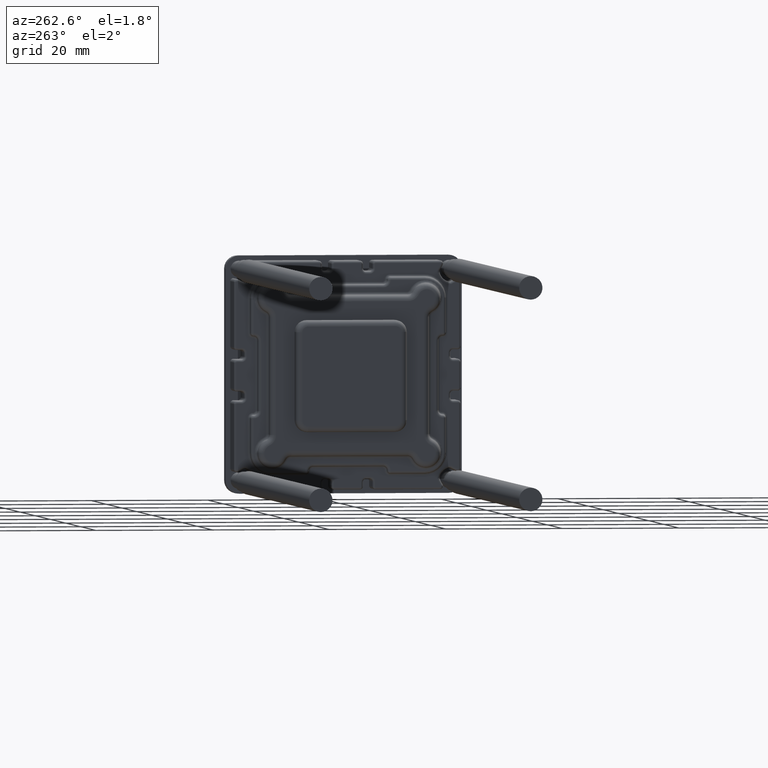
[diagram: clean part render]
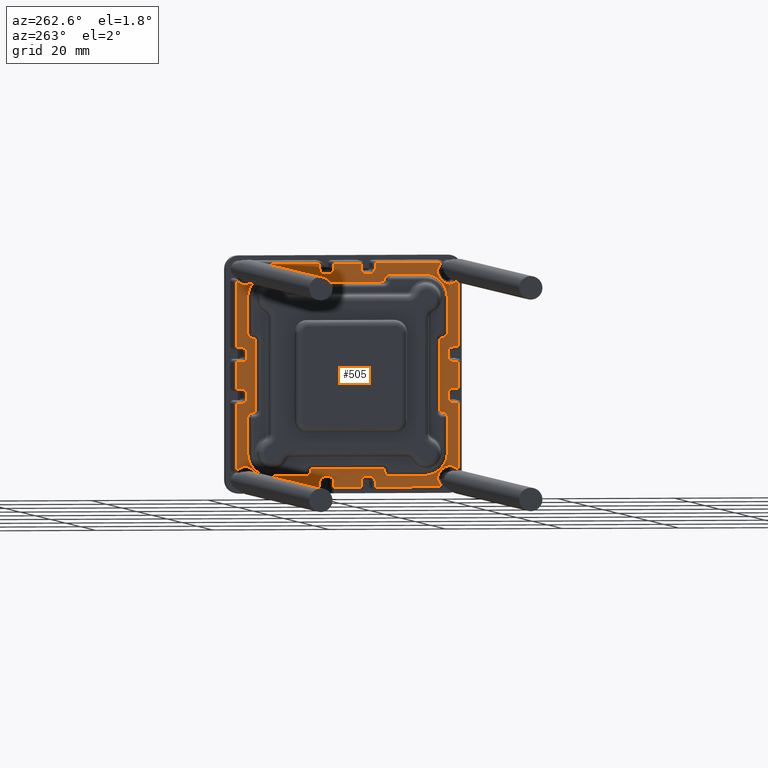
[diagram: same view with one face highlighted and labeled with its STEP entity id]
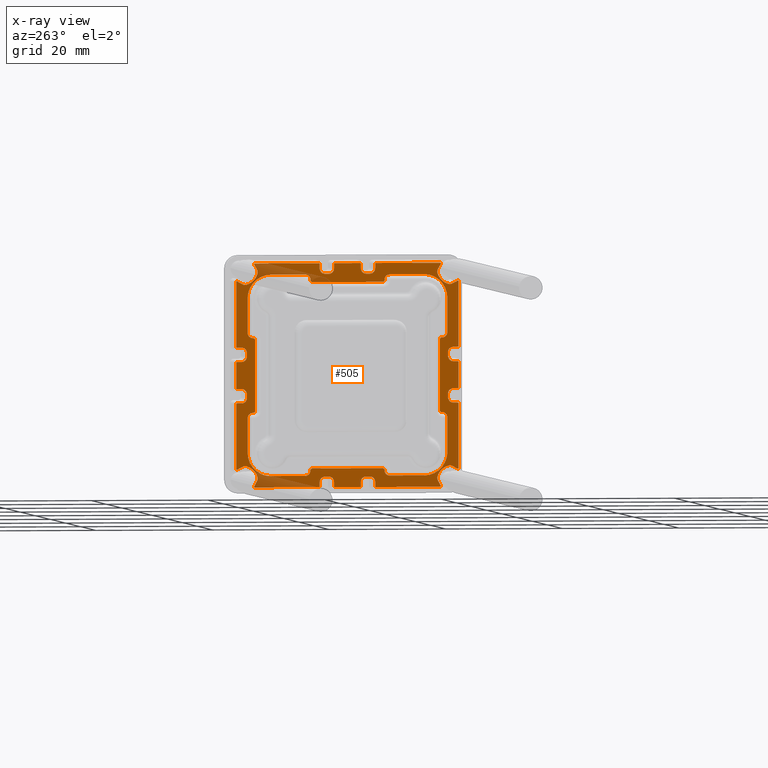
[diagram: x-ray of the same camera — body ghosted, the highlighted face saturated]
A machine part, auxiliary view. The second image highlights one B-rep face of the part: STEP entity #505.
The next image is the same camera in x-ray: the body ghosted, the highlighted face saturated — about 10% of this face is hidden behind the body in this view.
In plain terms, the highlighted planar face has unit normal (-1, 0, 0).
Its self-contained STEP definition (entity closure, byte-faithful):
#505=ADVANCED_FACE('',(#1365,#935),#3859,.T.);
#935=FACE_OUTER_BOUND('',#1378,.F.);
#1365=FACE_BOUND('',#1377,.F.);
#1377=EDGE_LOOP('',(#1819,#1820,#1821,#1822,#1823,#1824,#1825,#1826,#1827,
#1828,#1829,#1830,#1831,#1832,#1833,#1834,#1835,#1836,#1837,#1838,#1839,
#1840,#1841,#1842,#1843,#1844,#1845,#1846,#1847,#1848,#1849,#1850,#1851,
#1852,#1853,#1854,#1855,#1856,#1857,#1858,#1859,#1860,#1861,#1862));
#1378=EDGE_LOOP('',(#1863,#1864,#1865,#1866,#1867,#1868,#1869,#1870,#1871,
#1872,#1873,#1874,#1875,#1876,#1877,#1878,#1879,#1880,#1881,#1882,#1883,
#1884,#1885,#1886,#1887,#1888,#1889,#1890,#1891,#1892,#1893,#1894,#1895,
#1896,#1897,#1898,#1899,#1900,#1901,#1902,#1903,#1904,#1905,#1906,#1907,
#1908,#1909,#1910,#1911,#1912,#1913,#1914,#1915,#1916,#1917,#1918,#1919,
#1920,#1921,#1922,#1923,#1924,#1925,#1926,#1927,#1928,#1929,#1930,#1931,
#1932,#1933,#1934,#1935,#1936,#1937,#1938,#1939,#1940,#1941,#1942,#1943,
#1944,#1945,#1946,#1947,#1948,#1949,#1950,#1951,#1952,#1953,#1954,#1955,
#1956,#1957,#1958));
#1819=ORIENTED_EDGE('',*,*,#5737,.T.);
#1820=ORIENTED_EDGE('',*,*,#5736,.T.);
#1821=ORIENTED_EDGE('',*,*,#5735,.T.);
#1822=ORIENTED_EDGE('',*,*,#5734,.T.);
#1823=ORIENTED_EDGE('',*,*,#5733,.T.);
#1824=ORIENTED_EDGE('',*,*,#5732,.F.);
#1825=ORIENTED_EDGE('',*,*,#5731,.T.);
#1826=ORIENTED_EDGE('',*,*,#5730,.F.);
#1827=ORIENTED_EDGE('',*,*,#5729,.T.);
#1828=ORIENTED_EDGE('',*,*,#5728,.T.);
#1829=ORIENTED_EDGE('',*,*,#5727,.T.);
#1830=ORIENTED_EDGE('',*,*,#5726,.T.);
#1831=ORIENTED_EDGE('',*,*,#5725,.T.);
#1832=ORIENTED_EDGE('',*,*,#5724,.T.);
#1833=ORIENTED_EDGE('',*,*,#5723,.T.);
#1834=ORIENTED_EDGE('',*,*,#5722,.T.);
#1835=ORIENTED_EDGE('',*,*,#5721,.F.);
#1836=ORIENTED_EDGE('',*,*,#5720,.T.);
#1837=ORIENTED_EDGE('',*,*,#5719,.F.);
#1838=ORIENTED_EDGE('',*,*,#5718,.T.);
#1839=ORIENTED_EDGE('',*,*,#5717,.T.);
#1840=ORIENTED_EDGE('',*,*,#5716,.T.);
#1841=ORIENTED_EDGE('',*,*,#5715,.T.);
#1842=ORIENTED_EDGE('',*,*,#5714,.T.);
#1843=ORIENTED_EDGE('',*,*,#5713,.T.);
#1844=ORIENTED_EDGE('',*,*,#5712,.T.);
#1845=ORIENTED_EDGE('',*,*,#5711,.T.);
#1846=ORIENTED_EDGE('',*,*,#5710,.F.);
#1847=ORIENTED_EDGE('',*,*,#5709,.T.);
#1848=ORIENTED_EDGE('',*,*,#5708,.F.);
#1849=ORIENTED_EDGE('',*,*,#5707,.T.);
#1850=ORIENTED_EDGE('',*,*,#5706,.T.);
#1851=ORIENTED_EDGE('',*,*,#5705,.T.);
#1852=ORIENTED_EDGE('',*,*,#5704,.T.);
#1853=ORIENTED_EDGE('',*,*,#5703,.T.);
#1854=ORIENTED_EDGE('',*,*,#5702,.T.);
#1855=ORIENTED_EDGE('',*,*,#5701,.T.);
#1856=ORIENTED_EDGE('',*,*,#5700,.T.);
#1857=ORIENTED_EDGE('',*,*,#5699,.F.);
#1858=ORIENTED_EDGE('',*,*,#5698,.T.);
#1859=ORIENTED_EDGE('',*,*,#5697,.F.);
#1860=ORIENTED_EDGE('',*,*,#5696,.T.);
#1861=ORIENTED_EDGE('',*,*,#5695,.T.);
#1862=ORIENTED_EDGE('',*,*,#5694,.T.);
#1863=ORIENTED_EDGE('',*,*,#5408,.F.);
#1864=ORIENTED_EDGE('',*,*,#5406,.F.);
#1865=ORIENTED_EDGE('',*,*,#5596,.F.);
#1866=ORIENTED_EDGE('',*,*,#5594,.F.);
#1867=ORIENTED_EDGE('',*,*,#5442,.T.);
#1868=ORIENTED_EDGE('',*,*,#5444,.T.);
#1869=ORIENTED_EDGE('',*,*,#5446,.T.);
#1870=ORIENTED_EDGE('',*,*,#5448,.F.);
#1871=ORIENTED_EDGE('',*,*,#5584,.F.);
#1872=ORIENTED_EDGE('',*,*,#5582,.F.);
#1873=ORIENTED_EDGE('',*,*,#5580,.F.);
#1874=ORIENTED_EDGE('',*,*,#5578,.F.);
#1875=ORIENTED_EDGE('',*,*,#5576,.T.);
#1876=ORIENTED_EDGE('',*,*,#5574,.F.);
#1877=ORIENTED_EDGE('',*,*,#5570,.T.);
#1878=ORIENTED_EDGE('',*,*,#5568,.F.);
#1879=ORIENTED_EDGE('',*,*,#5566,.F.);
#1880=ORIENTED_EDGE('',*,*,#5564,.F.);
#1881=ORIENTED_EDGE('',*,*,#5562,.F.);
#1882=ORIENTED_EDGE('',*,*,#5560,.F.);
#1883=ORIENTED_EDGE('',*,*,#5524,.T.);
#1884=ORIENTED_EDGE('',*,*,#5558,.F.);
#1885=ORIENTED_EDGE('',*,*,#5556,.T.);
#1886=ORIENTED_EDGE('',*,*,#5554,.F.);
#1887=ORIENTED_EDGE('',*,*,#5552,.F.);
#1888=ORIENTED_EDGE('',*,*,#5550,.F.);
#1889=ORIENTED_EDGE('',*,*,#5548,.F.);
#1890=ORIENTED_EDGE('',*,*,#5450,.F.);
#1891=ORIENTED_EDGE('',*,*,#5490,.T.);
#1892=ORIENTED_EDGE('',*,*,#5492,.T.);
#1893=ORIENTED_EDGE('',*,*,#5494,.T.);
#1894=ORIENTED_EDGE('',*,*,#5496,.F.);
#1895=ORIENTED_EDGE('',*,*,#5536,.F.);
#1896=ORIENTED_EDGE('',*,*,#5534,.F.);
#1897=ORIENTED_EDGE('',*,*,#5532,.F.);
#1898=ORIENTED_EDGE('',*,*,#5530,.F.);
#1899=ORIENTED_EDGE('',*,*,#5528,.T.);
#1900=ORIENTED_EDGE('',*,*,#5526,.F.);
#1901=ORIENTED_EDGE('',*,*,#5522,.T.);
#1902=ORIENTED_EDGE('',*,*,#5520,.F.);
#1903=ORIENTED_EDGE('',*,*,#5518,.F.);
#1904=ORIENTED_EDGE('',*,*,#5516,.F.);
#1905=ORIENTED_EDGE('',*,*,#5514,.F.);
#1906=ORIENTED_EDGE('',*,*,#5512,.F.);
#1907=ORIENTED_EDGE('',*,*,#5476,.T.);
#1908=ORIENTED_EDGE('',*,*,#5510,.F.);
#1909=ORIENTED_EDGE('',*,*,#5508,.T.);
#1910=ORIENTED_EDGE('',*,*,#5506,.F.);
#1911=ORIENTED_EDGE('',*,*,#5504,.F.);
#1912=ORIENTED_EDGE('',*,*,#5502,.F.);
#1913=ORIENTED_EDGE('',*,*,#5500,.F.);
#1914=ORIENTED_EDGE('',*,*,#5498,.F.);
#1915=ORIENTED_EDGE('',*,*,#5538,.T.);
#1916=ORIENTED_EDGE('',*,*,#5540,.T.);
#1917=ORIENTED_EDGE('',*,*,#5542,.T.);
#1918=ORIENTED_EDGE('',*,*,#5544,.F.);
#1919=ORIENTED_EDGE('',*,*,#5488,.F.);
#1920=ORIENTED_EDGE('',*,*,#5486,.F.);
#1921=ORIENTED_EDGE('',*,*,#5484,.F.);
#1922=ORIENTED_EDGE('',*,*,#5482,.F.);
#1923=ORIENTED_EDGE('',*,*,#5480,.T.);
#1924=ORIENTED_EDGE('',*,*,#5478,.F.);
#1925=ORIENTED_EDGE('',*,*,#5474,.T.);
#1926=ORIENTED_EDGE('',*,*,#5472,.F.);
#1927=ORIENTED_EDGE('',*,*,#5470,.F.);
#1928=ORIENTED_EDGE('',*,*,#5468,.F.);
#1929=ORIENTED_EDGE('',*,*,#5466,.F.);
#1930=ORIENTED_EDGE('',*,*,#5464,.F.);
#1931=ORIENTED_EDGE('',*,*,#5428,.T.);
#1932=ORIENTED_EDGE('',*,*,#5462,.F.);
#1933=ORIENTED_EDGE('',*,*,#5460,.T.);
#1934=ORIENTED_EDGE('',*,*,#5458,.F.);
#1935=ORIENTED_EDGE('',*,*,#5456,.F.);
#1936=ORIENTED_EDGE('',*,*,#5454,.F.);
#1937=ORIENTED_EDGE('',*,*,#5452,.F.);
#1938=ORIENTED_EDGE('',*,*,#5546,.F.);
#1939=ORIENTED_EDGE('',*,*,#5586,.T.);
#1940=ORIENTED_EDGE('',*,*,#5588,.T.);
#1941=ORIENTED_EDGE('',*,*,#5590,.T.);
#1942=ORIENTED_EDGE('',*,*,#5592,.F.);
#1943=ORIENTED_EDGE('',*,*,#5440,.F.);
#1944=ORIENTED_EDGE('',*,*,#5438,.F.);
#1945=ORIENTED_EDGE('',*,*,#5436,.F.);
#1946=ORIENTED_EDGE('',*,*,#5434,.F.);
#1947=ORIENTED_EDGE('',*,*,#5432,.T.);
#1948=ORIENTED_EDGE('',*,*,#5430,.F.);
#1949=ORIENTED_EDGE('',*,*,#5426,.T.);
#1950=ORIENTED_EDGE('',*,*,#5424,.F.);
#1951=ORIENTED_EDGE('',*,*,#5422,.F.);
#1952=ORIENTED_EDGE('',*,*,#5420,.F.);
#1953=ORIENTED_EDGE('',*,*,#5418,.F.);
#1954=ORIENTED_EDGE('',*,*,#5416,.F.);
#1955=ORIENTED_EDGE('',*,*,#5572,.T.);
#1956=ORIENTED_EDGE('',*,*,#5414,.F.);
#1957=ORIENTED_EDGE('',*,*,#5412,.T.);
#1958=ORIENTED_EDGE('',*,*,#5410,.F.);
#3859=PLANE('',#8527);
#4834=CIRCLE('',#7955,0.0999999999999996);
#4836=CIRCLE('',#7957,0.899999999999992);
#4838=CIRCLE('',#7959,0.0999999999999687);
#4840=CIRCLE('',#7961,0.0999999999999996);
#4842=CIRCLE('',#7963,0.900000000000015);
#4844=CIRCLE('',#7965,0.899999999999974);
#4846=CIRCLE('',#7967,0.900000000000024);
#4848=CIRCLE('',#7969,0.0999999999999999);
#4850=CIRCLE('',#7971,0.099999999999993);
#4852=CIRCLE('',#7973,0.899999999999983);
#4854=CIRCLE('',#7975,2.65);
#4856=CIRCLE('',#7977,0.899999999999994);
#4858=CIRCLE('',#7979,0.0999999999999835);
#4860=CIRCLE('',#7981,0.0999999999999996);
#4862=CIRCLE('',#7983,0.900000000000032);
#4864=CIRCLE('',#7985,0.100000000000009);
#4866=CIRCLE('',#7987,0.0999999999999819);
#4868=CIRCLE('',#7989,0.89999999999997);
#4870=CIRCLE('',#7991,0.900000000000018);
#4872=CIRCLE('',#7993,0.900000000000024);
#4874=CIRCLE('',#7995,0.0999999999999954);
#4876=CIRCLE('',#7997,0.099999999999993);
#4878=CIRCLE('',#7999,0.900000000000004);
#4880=CIRCLE('',#8001,2.64999999999999);
#4882=CIRCLE('',#8003,0.899999999999994);
#4884=CIRCLE('',#8005,0.0999999999999585);
#4886=CIRCLE('',#8007,0.0999999999999996);
#4888=CIRCLE('',#8009,0.90000000000001);
#4890=CIRCLE('',#8011,0.0999999999999864);
#4892=CIRCLE('',#8013,0.0999999999999819);
#4894=CIRCLE('',#8015,0.90000000000001);
#4896=CIRCLE('',#8017,0.900000000000018);
#4898=CIRCLE('',#8019,0.89999999999998);
#4900=CIRCLE('',#8021,0.0999999999999777);
#4902=CIRCLE('',#8023,0.100000000000009);
#4904=CIRCLE('',#8025,0.89999999999998);
#4906=CIRCLE('',#8027,2.65);
#4908=CIRCLE('',#8029,0.899999999999994);
#4910=CIRCLE('',#8031,0.0999999999999835);
#4912=CIRCLE('',#8033,0.0999999999999996);
#4914=CIRCLE('',#8035,0.90000000000001);
#4916=CIRCLE('',#8037,0.100000000000009);
#4918=CIRCLE('',#8039,0.100000000000004);
#4920=CIRCLE('',#8041,0.899999999999993);
#4922=CIRCLE('',#8043,0.899999999999996);
#4924=CIRCLE('',#8045,0.900000000000021);
#4926=CIRCLE('',#8047,0.0999999999999954);
#4928=CIRCLE('',#8049,0.099999999999993);
#4930=CIRCLE('',#8051,0.89999999999998);
#4932=CIRCLE('',#8053,2.65);
#4934=CIRCLE('',#8055,0.900000000000015);
#4936=CIRCLE('',#8057,0.099999999999997);
#4990=CIRCLE('',#8111,0.900000000001126);
#4991=CIRCLE('',#8112,0.349999999999874);
#4992=CIRCLE('',#8113,0.349999999999974);
#4993=CIRCLE('',#8114,0.900000000000002);
#4994=CIRCLE('',#8115,3.94999999999996);
#4995=CIRCLE('',#8116,3.94999999999996);
#4996=CIRCLE('',#8117,0.900000000000048);
#4997=CIRCLE('',#8118,0.349999999999998);
#4998=CIRCLE('',#8119,0.349999999999992);
#4999=CIRCLE('',#8120,0.899999999999997);
#5000=CIRCLE('',#8121,3.94999999999996);
#5001=CIRCLE('',#8122,3.94999999999996);
#5002=CIRCLE('',#8123,0.900000000001108);
#5003=CIRCLE('',#8124,0.349999999999874);
#5004=CIRCLE('',#8125,0.349999999999992);
#5005=CIRCLE('',#8126,0.90000000000002);
#5006=CIRCLE('',#8127,3.94999999999992);
#5007=CIRCLE('',#8128,3.94999999999992);
#5008=CIRCLE('',#8129,0.899999999999924);
#5009=CIRCLE('',#8130,0.350000000000013);
#5010=CIRCLE('',#8131,0.350000000000014);
#5011=CIRCLE('',#8132,0.899999999999992);
#5012=CIRCLE('',#8133,3.94999999999996);
#5013=CIRCLE('',#8134,3.94999999999996);
#5406=EDGE_CURVE('',#7925,#7924,#6426,.T.);
#5408=EDGE_CURVE('',#7924,#7921,#4834,.T.);
#5410=EDGE_CURVE('',#7921,#7919,#6428,.T.);
#5412=EDGE_CURVE('',#7917,#7919,#4836,.T.);
#5414=EDGE_CURVE('',#7917,#7915,#6430,.T.);
#5416=EDGE_CURVE('',#7913,#7912,#6432,.T.);
#5418=EDGE_CURVE('',#7912,#7909,#4838,.T.);
#5420=EDGE_CURVE('',#7909,#7907,#6434,.T.);
#5422=EDGE_CURVE('',#7907,#7905,#4840,.T.);
#5424=EDGE_CURVE('',#7905,#7903,#6436,.T.);
#5426=EDGE_CURVE('',#7901,#7903,#4842,.T.);
#5428=EDGE_CURVE('',#7899,#7898,#4844,.T.);
#5430=EDGE_CURVE('',#7901,#7895,#6438,.T.);
#5432=EDGE_CURVE('',#7893,#7895,#4846,.T.);
#5434=EDGE_CURVE('',#7893,#7891,#6440,.T.);
#5436=EDGE_CURVE('',#7891,#7889,#4848,.T.);
#5438=EDGE_CURVE('',#7889,#7887,#6442,.T.);
#5440=EDGE_CURVE('',#7887,#7885,#4850,.T.);
#5442=EDGE_CURVE('',#7883,#7882,#4852,.T.);
#5444=EDGE_CURVE('',#7882,#7879,#4854,.T.);
#5446=EDGE_CURVE('',#7879,#7877,#4856,.T.);
#5448=EDGE_CURVE('',#7875,#7877,#6444,.T.);
#5450=EDGE_CURVE('',#7873,#7872,#6446,.T.);
#5452=EDGE_CURVE('',#7869,#7868,#4858,.T.);
#5454=EDGE_CURVE('',#7868,#7865,#6448,.T.);
#5456=EDGE_CURVE('',#7865,#7863,#4860,.T.);
#5458=EDGE_CURVE('',#7863,#7861,#6450,.T.);
#5460=EDGE_CURVE('',#7859,#7861,#4862,.T.);
#5462=EDGE_CURVE('',#7859,#7898,#6452,.T.);
#5464=EDGE_CURVE('',#7899,#7857,#6454,.T.);
#5466=EDGE_CURVE('',#7857,#7855,#4864,.T.);
#5468=EDGE_CURVE('',#7855,#7853,#6456,.T.);
#5470=EDGE_CURVE('',#7853,#7851,#4866,.T.);
#5472=EDGE_CURVE('',#7851,#7849,#6458,.T.);
#5474=EDGE_CURVE('',#7847,#7849,#4868,.T.);
#5476=EDGE_CURVE('',#7845,#7844,#4870,.T.);
#5478=EDGE_CURVE('',#7847,#7841,#6460,.T.);
#5480=EDGE_CURVE('',#7839,#7841,#4872,.T.);
#5482=EDGE_CURVE('',#7839,#7837,#6462,.T.);
#5484=EDGE_CURVE('',#7837,#7835,#4874,.T.);
#5486=EDGE_CURVE('',#7835,#7833,#6464,.T.);
#5488=EDGE_CURVE('',#7833,#7831,#4876,.T.);
#5490=EDGE_CURVE('',#7873,#7829,#4878,.T.);
#5492=EDGE_CURVE('',#7829,#7827,#4880,.T.);
#5494=EDGE_CURVE('',#7827,#7825,#4882,.T.);
#5496=EDGE_CURVE('',#7823,#7825,#6466,.T.);
#5498=EDGE_CURVE('',#7821,#7820,#6468,.T.);
#5500=EDGE_CURVE('',#7820,#7817,#4884,.T.);
#5502=EDGE_CURVE('',#7817,#7815,#6470,.T.);
#5504=EDGE_CURVE('',#7815,#7813,#4886,.T.);
#5506=EDGE_CURVE('',#7813,#7811,#6472,.T.);
#5508=EDGE_CURVE('',#7809,#7811,#4888,.T.);
#5510=EDGE_CURVE('',#7809,#7844,#6474,.T.);
#5512=EDGE_CURVE('',#7845,#7807,#6476,.T.);
#5514=EDGE_CURVE('',#7807,#7805,#4890,.T.);
#5516=EDGE_CURVE('',#7805,#7803,#6478,.T.);
#5518=EDGE_CURVE('',#7803,#7801,#4892,.T.);
#5520=EDGE_CURVE('',#7801,#7799,#6480,.T.);
#5522=EDGE_CURVE('',#7797,#7799,#4894,.T.);
#5524=EDGE_CURVE('',#7795,#7794,#4896,.T.);
#5526=EDGE_CURVE('',#7797,#7791,#6482,.T.);
#5528=EDGE_CURVE('',#7789,#7791,#4898,.T.);
#5530=EDGE_CURVE('',#7789,#7787,#6484,.T.);
#5532=EDGE_CURVE('',#7787,#7785,#4900,.T.);
#5534=EDGE_CURVE('',#7785,#7783,#6486,.T.);
#5536=EDGE_CURVE('',#7783,#7823,#4902,.T.);
#5538=EDGE_CURVE('',#7821,#7781,#4904,.T.);
#5540=EDGE_CURVE('',#7781,#7779,#4906,.T.);
#5542=EDGE_CURVE('',#7779,#7777,#4908,.T.);
#5544=EDGE_CURVE('',#7831,#7777,#6488,.T.);
#5546=EDGE_CURVE('',#7775,#7869,#6490,.T.);
#5548=EDGE_CURVE('',#7872,#7773,#4910,.T.);
#5550=EDGE_CURVE('',#7773,#7771,#6492,.T.);
#5552=EDGE_CURVE('',#7771,#7769,#4912,.T.);
#5554=EDGE_CURVE('',#7769,#7767,#6494,.T.);
#5556=EDGE_CURVE('',#7765,#7767,#4914,.T.);
#5558=EDGE_CURVE('',#7765,#7794,#6496,.T.);
#5560=EDGE_CURVE('',#7795,#7763,#6498,.T.);
#5562=EDGE_CURVE('',#7763,#7761,#4916,.T.);
#5564=EDGE_CURVE('',#7761,#7759,#6500,.T.);
#5566=EDGE_CURVE('',#7759,#7757,#4918,.T.);
#5568=EDGE_CURVE('',#7757,#7755,#6502,.T.);
#5570=EDGE_CURVE('',#7753,#7755,#4920,.T.);
#5572=EDGE_CURVE('',#7913,#7915,#4922,.T.);
#5574=EDGE_CURVE('',#7753,#7751,#6504,.T.);
#5576=EDGE_CURVE('',#7749,#7751,#4924,.T.);
#5578=EDGE_CURVE('',#7749,#7747,#6506,.T.);
#5580=EDGE_CURVE('',#7747,#7745,#4926,.T.);
#5582=EDGE_CURVE('',#7745,#7743,#6508,.T.);
#5584=EDGE_CURVE('',#7743,#7875,#4928,.T.);
#5586=EDGE_CURVE('',#7775,#7741,#4930,.T.);
#5588=EDGE_CURVE('',#7741,#7739,#4932,.T.);
#5590=EDGE_CURVE('',#7739,#7737,#4934,.T.);
#5592=EDGE_CURVE('',#7885,#7737,#6510,.T.);
#5594=EDGE_CURVE('',#7883,#7735,#6512,.T.);
#5596=EDGE_CURVE('',#7735,#7925,#4936,.T.);
#5694=EDGE_CURVE('',#7637,#7636,#6558,.T.);
#5695=EDGE_CURVE('',#7635,#7637,#4990,.T.);
#5696=EDGE_CURVE('',#7634,#7635,#6559,.T.);
#5697=EDGE_CURVE('',#7634,#7633,#4991,.T.);
#5698=EDGE_CURVE('',#7632,#7633,#6560,.T.);
#5699=EDGE_CURVE('',#7632,#7631,#4992,.T.);
#5700=EDGE_CURVE('',#7630,#7631,#6561,.T.);
#5701=EDGE_CURVE('',#7629,#7630,#4993,.T.);
#5702=EDGE_CURVE('',#7628,#7629,#6562,.T.);
#5703=EDGE_CURVE('',#7627,#7628,#4994,.T.);
#5704=EDGE_CURVE('',#7626,#7627,#4995,.T.);
#5705=EDGE_CURVE('',#7625,#7626,#6563,.T.);
#5706=EDGE_CURVE('',#7624,#7625,#4996,.T.);
#5707=EDGE_CURVE('',#7623,#7624,#6564,.T.);
#5708=EDGE_CURVE('',#7623,#7622,#4997,.T.);
#5709=EDGE_CURVE('',#7621,#7622,#6565,.T.);
#5710=EDGE_CURVE('',#7621,#7620,#4998,.T.);
#5711=EDGE_CURVE('',#7619,#7620,#6566,.T.);
#5712=EDGE_CURVE('',#7618,#7619,#4999,.T.);
#5713=EDGE_CURVE('',#7617,#7618,#6567,.T.);
#5714=EDGE_CURVE('',#7616,#7617,#5000,.T.);
#5715=EDGE_CURVE('',#7615,#7616,#5001,.T.);
#5716=EDGE_CURVE('',#7614,#7615,#6568,.T.);
#5717=EDGE_CURVE('',#7613,#7614,#5002,.T.);
#5718=EDGE_CURVE('',#7612,#7613,#6569,.T.);
#5719=EDGE_CURVE('',#7612,#7611,#5003,.T.);
#5720=EDGE_CURVE('',#7610,#7611,#6570,.T.);
#5721=EDGE_CURVE('',#7610,#7609,#5004,.T.);
#5722=EDGE_CURVE('',#7608,#7609,#6571,.T.);
#5723=EDGE_CURVE('',#7607,#7608,#5005,.T.);
#5724=EDGE_CURVE('',#7606,#7607,#6572,.T.);
#5725=EDGE_CURVE('',#7605,#7606,#5006,.T.);
#5726=EDGE_CURVE('',#7604,#7605,#5007,.T.);
#5727=EDGE_CURVE('',#7603,#7604,#6573,.T.);
#5728=EDGE_CURVE('',#7602,#7603,#5008,.T.);
#5729=EDGE_CURVE('',#7601,#7602,#6574,.T.);
#5730=EDGE_CURVE('',#7601,#7600,#5009,.T.);
#5731=EDGE_CURVE('',#7599,#7600,#6575,.T.);
#5732=EDGE_CURVE('',#7599,#7598,#5010,.T.);
#5733=EDGE_CURVE('',#7597,#7598,#6576,.T.);
#5734=EDGE_CURVE('',#7596,#7597,#5011,.T.);
#5735=EDGE_CURVE('',#7595,#7596,#6577,.T.);
#5736=EDGE_CURVE('',#7594,#7595,#5012,.T.);
#5737=EDGE_CURVE('',#7636,#7594,#5013,.T.);
#6426=LINE('',#12025,#6874);
#6428=LINE('',#12029,#6876);
#6430=LINE('',#12033,#6878);
#6432=LINE('',#12035,#6880);
#6434=LINE('',#12039,#6882);
#6436=LINE('',#12043,#6884);
#6438=LINE('',#12049,#6886);
#6440=LINE('',#12053,#6888);
#6442=LINE('',#12057,#6890);
#6444=LINE('',#12067,#6892);
#6446=LINE('',#12069,#6894);
#6448=LINE('',#12073,#6896);
#6450=LINE('',#12077,#6898);
#6452=LINE('',#12081,#6900);
#6454=LINE('',#12083,#6902);
#6456=LINE('',#12087,#6904);
#6458=LINE('',#12091,#6906);
#6460=LINE('',#12097,#6908);
#6462=LINE('',#12101,#6910);
#6464=LINE('',#12105,#6912);
#6466=LINE('',#12115,#6914);
#6468=LINE('',#12117,#6916);
#6470=LINE('',#12121,#6918);
#6472=LINE('',#12125,#6920);
#6474=LINE('',#12129,#6922);
#6476=LINE('',#12131,#6924);
#6478=LINE('',#12135,#6926);
#6480=LINE('',#12139,#6928);
#6482=LINE('',#12145,#6930);
#6484=LINE('',#12149,#6932);
#6486=LINE('',#12153,#6934);
#6488=LINE('',#12163,#6936);
#6490=LINE('',#12165,#6938);
#6492=LINE('',#12169,#6940);
#6494=LINE('',#12173,#6942);
#6496=LINE('',#12177,#6944);
#6498=LINE('',#12179,#6946);
#6500=LINE('',#12183,#6948);
#6502=LINE('',#12187,#6950);
#6504=LINE('',#12193,#6952);
#6506=LINE('',#12197,#6954);
#6508=LINE('',#12201,#6956);
#6510=LINE('',#12211,#6958);
#6512=LINE('',#12213,#6960);
#6558=LINE('',#12313,#7006);
#6559=LINE('',#12315,#7007);
#6560=LINE('',#12317,#7008);
#6561=LINE('',#12319,#7009);
#6562=LINE('',#12321,#7010);
#6563=LINE('',#12324,#7011);
#6564=LINE('',#12326,#7012);
#6565=LINE('',#12328,#7013);
#6566=LINE('',#12330,#7014);
#6567=LINE('',#12332,#7015);
#6568=LINE('',#12335,#7016);
#6569=LINE('',#12337,#7017);
#6570=LINE('',#12339,#7018);
#6571=LINE('',#12341,#7019);
#6572=LINE('',#12343,#7020);
#6573=LINE('',#12346,#7021);
#6574=LINE('',#12348,#7022);
#6575=LINE('',#12350,#7023);
#6576=LINE('',#12352,#7024);
#6577=LINE('',#12354,#7025);
#6874=VECTOR('',#8963,11.0713974375404);
#6876=VECTOR('',#8969,0.799992763092629);
#6878=VECTOR('',#8975,0.649999873558926);
#6880=VECTOR('',#8977,0.799992982297542);
#6882=VECTOR('',#8983,4.40000000738531);
#6884=VECTOR('',#8989,0.799993307269887);
#6886=VECTOR('',#8999,0.64999987358118);
#6888=VECTOR('',#9005,0.799993265494191);
#6890=VECTOR('',#9011,11.0713900209891);
#6892=VECTOR('',#9029,1.05492063840041);
#6894=VECTOR('',#9031,1.05492015859115);
#6896=VECTOR('',#9037,11.0713974390536);
#6898=VECTOR('',#9043,0.799992763092632);
#6900=VECTOR('',#9049,0.64999987355889);
#6902=VECTOR('',#9051,0.799992982297624);
#6904=VECTOR('',#9057,4.40000000738535);
#6906=VECTOR('',#9063,0.799993307269887);
#6908=VECTOR('',#9073,0.649999873581145);
#6910=VECTOR('',#9079,0.79999326549418);
#6912=VECTOR('',#9085,11.0713900209891);
#6914=VECTOR('',#9103,1.0549206384003);
#6916=VECTOR('',#9105,1.05492015859111);
#6918=VECTOR('',#9111,11.0713974390536);
#6920=VECTOR('',#9117,0.799992763092696);
#6922=VECTOR('',#9123,0.649999873558897);
#6924=VECTOR('',#9125,0.799992982297539);
#6926=VECTOR('',#9131,4.40000000738543);
#6928=VECTOR('',#9137,0.799993307269915);
#6930=VECTOR('',#9147,0.649999873581208);
#6932=VECTOR('',#9153,0.799993265494152);
#6934=VECTOR('',#9159,11.0713900209891);
#6936=VECTOR('',#9177,1.05492063840041);
#6938=VECTOR('',#9179,1.05492015859121);
#6940=VECTOR('',#9185,11.0713974390536);
#6942=VECTOR('',#9191,0.799992763092661);
#6944=VECTOR('',#9197,0.649999873558897);
#6946=VECTOR('',#9199,0.799992982297567);
#6948=VECTOR('',#9205,4.40000000738534);
#6950=VECTOR('',#9211,0.799993307269858);
#6952=VECTOR('',#9221,0.649999873581137);
#6954=VECTOR('',#9227,0.79999326549418);
#6956=VECTOR('',#9233,11.0713900209891);
#6958=VECTOR('',#9251,1.05492063840043);
#6960=VECTOR('',#9253,1.05492015859102);
#7006=VECTOR('',#9407,5.92037518717498);
#7007=VECTOR('',#9410,0.0197750240604151);
#7008=VECTOR('',#9413,12.0000070948885);
#7009=VECTOR('',#9416,0.0198635744017684);
#7010=VECTOR('',#9419,5.91876568976158);
#7011=VECTOR('',#9424,5.92037518881106);
#7012=VECTOR('',#9427,0.0197750240600669);
#7013=VECTOR('',#9430,12.0000070948885);
#7014=VECTOR('',#9433,0.0198636849941925);
#7015=VECTOR('',#9436,5.91876568976149);
#7016=VECTOR('',#9441,5.92037518717524);
#7017=VECTOR('',#9444,0.0197750240604009);
#7018=VECTOR('',#9447,12.0000070948885);
#7019=VECTOR('',#9450,0.0198635744017968);
#7020=VECTOR('',#9453,5.91876568976161);
#7021=VECTOR('',#9458,5.92037518881109);
#7022=VECTOR('',#9461,0.0197750240600669);
#7023=VECTOR('',#9464,12.0000070948885);
#7024=VECTOR('',#9467,0.0198636849941925);
#7025=VECTOR('',#9470,5.91876568976151);
#7594=VERTEX_POINT('',#11693);
#7595=VERTEX_POINT('',#11694);
#7596=VERTEX_POINT('',#11695);
#7597=VERTEX_POINT('',#11696);
#7598=VERTEX_POINT('',#11697);
#7599=VERTEX_POINT('',#11698);
#7600=VERTEX_POINT('',#11699);
#7601=VERTEX_POINT('',#11700);
#7602=VERTEX_POINT('',#11701);
#7603=VERTEX_POINT('',#11702);
#7604=VERTEX_POINT('',#11703);
#7605=VERTEX_POINT('',#11704);
#7606=VERTEX_POINT('',#11705);
#7607=VERTEX_POINT('',#11706);
#7608=VERTEX_POINT('',#11707);
#7609=VERTEX_POINT('',#11708);
#7610=VERTEX_POINT('',#11709);
#7611=VERTEX_POINT('',#11710);
#7612=VERTEX_POINT('',#11711);
#7613=VERTEX_POINT('',#11712);
#7614=VERTEX_POINT('',#11713);
#7615=VERTEX_POINT('',#11714);
#7616=VERTEX_POINT('',#11715);
#7617=VERTEX_POINT('',#11716);
#7618=VERTEX_POINT('',#11717);
#7619=VERTEX_POINT('',#11718);
#7620=VERTEX_POINT('',#11719);
#7621=VERTEX_POINT('',#11720);
#7622=VERTEX_POINT('',#11721);
#7623=VERTEX_POINT('',#11722);
#7624=VERTEX_POINT('',#11723);
#7625=VERTEX_POINT('',#11724);
#7626=VERTEX_POINT('',#11725);
#7627=VERTEX_POINT('',#11726);
#7628=VERTEX_POINT('',#11727);
#7629=VERTEX_POINT('',#11728);
#7630=VERTEX_POINT('',#11729);
#7631=VERTEX_POINT('',#11730);
#7632=VERTEX_POINT('',#11731);
#7633=VERTEX_POINT('',#11732);
#7634=VERTEX_POINT('',#11733);
#7635=VERTEX_POINT('',#11734);
#7636=VERTEX_POINT('',#11735);
#7637=VERTEX_POINT('',#11736);
#7735=VERTEX_POINT('',#11834);
#7737=VERTEX_POINT('',#11836);
#7739=VERTEX_POINT('',#11838);
#7741=VERTEX_POINT('',#11840);
#7743=VERTEX_POINT('',#11842);
#7745=VERTEX_POINT('',#11844);
#7747=VERTEX_POINT('',#11846);
#7749=VERTEX_POINT('',#11848);
#7751=VERTEX_POINT('',#11850);
#7753=VERTEX_POINT('',#11852);
#7755=VERTEX_POINT('',#11854);
#7757=VERTEX_POINT('',#11856);
#7759=VERTEX_POINT('',#11858);
#7761=VERTEX_POINT('',#11860);
#7763=VERTEX_POINT('',#11862);
#7765=VERTEX_POINT('',#11864);
#7767=VERTEX_POINT('',#11866);
#7769=VERTEX_POINT('',#11868);
#7771=VERTEX_POINT('',#11870);
#7773=VERTEX_POINT('',#11872);
#7775=VERTEX_POINT('',#11874);
#7777=VERTEX_POINT('',#11876);
#7779=VERTEX_POINT('',#11878);
#7781=VERTEX_POINT('',#11880);
#7783=VERTEX_POINT('',#11882);
#7785=VERTEX_POINT('',#11884);
#7787=VERTEX_POINT('',#11886);
#7789=VERTEX_POINT('',#11888);
#7791=VERTEX_POINT('',#11890);
#7794=VERTEX_POINT('',#11893);
#7795=VERTEX_POINT('',#11894);
#7797=VERTEX_POINT('',#11896);
#7799=VERTEX_POINT('',#11898);
#7801=VERTEX_POINT('',#11900);
#7803=VERTEX_POINT('',#11902);
#7805=VERTEX_POINT('',#11904);
#7807=VERTEX_POINT('',#11906);
#7809=VERTEX_POINT('',#11908);
#7811=VERTEX_POINT('',#11910);
#7813=VERTEX_POINT('',#11912);
#7815=VERTEX_POINT('',#11914);
#7817=VERTEX_POINT('',#11916);
#7820=VERTEX_POINT('',#11919);
#7821=VERTEX_POINT('',#11920);
#7823=VERTEX_POINT('',#11922);
#7825=VERTEX_POINT('',#11924);
#7827=VERTEX_POINT('',#11926);
#7829=VERTEX_POINT('',#11928);
#7831=VERTEX_POINT('',#11930);
#7833=VERTEX_POINT('',#11932);
#7835=VERTEX_POINT('',#11934);
#7837=VERTEX_POINT('',#11936);
#7839=VERTEX_POINT('',#11938);
#7841=VERTEX_POINT('',#11940);
#7844=VERTEX_POINT('',#11943);
#7845=VERTEX_POINT('',#11944);
#7847=VERTEX_POINT('',#11946);
#7849=VERTEX_POINT('',#11948);
#7851=VERTEX_POINT('',#11950);
#7853=VERTEX_POINT('',#11952);
#7855=VERTEX_POINT('',#11954);
#7857=VERTEX_POINT('',#11956);
#7859=VERTEX_POINT('',#11958);
#7861=VERTEX_POINT('',#11960);
#7863=VERTEX_POINT('',#11962);
#7865=VERTEX_POINT('',#11964);
#7868=VERTEX_POINT('',#11967);
#7869=VERTEX_POINT('',#11968);
#7872=VERTEX_POINT('',#11971);
#7873=VERTEX_POINT('',#11972);
#7875=VERTEX_POINT('',#11974);
#7877=VERTEX_POINT('',#11976);
#7879=VERTEX_POINT('',#11978);
#7882=VERTEX_POINT('',#11981);
#7883=VERTEX_POINT('',#11982);
#7885=VERTEX_POINT('',#11984);
#7887=VERTEX_POINT('',#11986);
#7889=VERTEX_POINT('',#11988);
#7891=VERTEX_POINT('',#11990);
#7893=VERTEX_POINT('',#11992);
#7895=VERTEX_POINT('',#11994);
#7898=VERTEX_POINT('',#11997);
#7899=VERTEX_POINT('',#11998);
#7901=VERTEX_POINT('',#12000);
#7903=VERTEX_POINT('',#12002);
#7905=VERTEX_POINT('',#12004);
#7907=VERTEX_POINT('',#12006);
#7909=VERTEX_POINT('',#12008);
#7912=VERTEX_POINT('',#12011);
#7913=VERTEX_POINT('',#12012);
#7915=VERTEX_POINT('',#12014);
#7917=VERTEX_POINT('',#12016);
#7919=VERTEX_POINT('',#12018);
#7921=VERTEX_POINT('',#12020);
#7924=VERTEX_POINT('',#12023);
#7925=VERTEX_POINT('',#12024);
#7955=AXIS2_PLACEMENT_3D('',#12027,#8965,#8966);
#7957=AXIS2_PLACEMENT_3D('',#12031,#8971,#8972);
#7959=AXIS2_PLACEMENT_3D('',#12037,#8979,#8980);
#7961=AXIS2_PLACEMENT_3D('',#12041,#8985,#8986);
#7963=AXIS2_PLACEMENT_3D('',#12045,#8991,#8992);
#7965=AXIS2_PLACEMENT_3D('',#12047,#8995,#8996);
#7967=AXIS2_PLACEMENT_3D('',#12051,#9001,#9002);
#7969=AXIS2_PLACEMENT_3D('',#12055,#9007,#9008);
#7971=AXIS2_PLACEMENT_3D('',#12059,#9013,#9014);
#7973=AXIS2_PLACEMENT_3D('',#12061,#9017,#9018);
#7975=AXIS2_PLACEMENT_3D('',#12063,#9021,#9022);
#7977=AXIS2_PLACEMENT_3D('',#12065,#9025,#9026);
#7979=AXIS2_PLACEMENT_3D('',#12071,#9033,#9034);
#7981=AXIS2_PLACEMENT_3D('',#12075,#9039,#9040);
#7983=AXIS2_PLACEMENT_3D('',#12079,#9045,#9046);
#7985=AXIS2_PLACEMENT_3D('',#12085,#9053,#9054);
#7987=AXIS2_PLACEMENT_3D('',#12089,#9059,#9060);
#7989=AXIS2_PLACEMENT_3D('',#12093,#9065,#9066);
#7991=AXIS2_PLACEMENT_3D('',#12095,#9069,#9070);
#7993=AXIS2_PLACEMENT_3D('',#12099,#9075,#9076);
#7995=AXIS2_PLACEMENT_3D('',#12103,#9081,#9082);
#7997=AXIS2_PLACEMENT_3D('',#12107,#9087,#9088);
#7999=AXIS2_PLACEMENT_3D('',#12109,#9091,#9092);
#8001=AXIS2_PLACEMENT_3D('',#12111,#9095,#9096);
#8003=AXIS2_PLACEMENT_3D('',#12113,#9099,#9100);
#8005=AXIS2_PLACEMENT_3D('',#12119,#9107,#9108);
#8007=AXIS2_PLACEMENT_3D('',#12123,#9113,#9114);
#8009=AXIS2_PLACEMENT_3D('',#12127,#9119,#9120);
#8011=AXIS2_PLACEMENT_3D('',#12133,#9127,#9128);
#8013=AXIS2_PLACEMENT_3D('',#12137,#9133,#9134);
#8015=AXIS2_PLACEMENT_3D('',#12141,#9139,#9140);
#8017=AXIS2_PLACEMENT_3D('',#12143,#9143,#9144);
#8019=AXIS2_PLACEMENT_3D('',#12147,#9149,#9150);
#8021=AXIS2_PLACEMENT_3D('',#12151,#9155,#9156);
#8023=AXIS2_PLACEMENT_3D('',#12155,#9161,#9162);
#8025=AXIS2_PLACEMENT_3D('',#12157,#9165,#9166);
#8027=AXIS2_PLACEMENT_3D('',#12159,#9169,#9170);
#8029=AXIS2_PLACEMENT_3D('',#12161,#9173,#9174);
#8031=AXIS2_PLACEMENT_3D('',#12167,#9181,#9182);
#8033=AXIS2_PLACEMENT_3D('',#12171,#9187,#9188);
#8035=AXIS2_PLACEMENT_3D('',#12175,#9193,#9194);
#8037=AXIS2_PLACEMENT_3D('',#12181,#9201,#9202);
#8039=AXIS2_PLACEMENT_3D('',#12185,#9207,#9208);
#8041=AXIS2_PLACEMENT_3D('',#12189,#9213,#9214);
#8043=AXIS2_PLACEMENT_3D('',#12191,#9217,#9218);
#8045=AXIS2_PLACEMENT_3D('',#12195,#9223,#9224);
#8047=AXIS2_PLACEMENT_3D('',#12199,#9229,#9230);
#8049=AXIS2_PLACEMENT_3D('',#12203,#9235,#9236);
#8051=AXIS2_PLACEMENT_3D('',#12205,#9239,#9240);
#8053=AXIS2_PLACEMENT_3D('',#12207,#9243,#9244);
#8055=AXIS2_PLACEMENT_3D('',#12209,#9247,#9248);
#8057=AXIS2_PLACEMENT_3D('',#12215,#9255,#9256);
#8111=AXIS2_PLACEMENT_3D('',#12314,#9408,#9409);
#8112=AXIS2_PLACEMENT_3D('',#12316,#9411,#9412);
#8113=AXIS2_PLACEMENT_3D('',#12318,#9414,#9415);
#8114=AXIS2_PLACEMENT_3D('',#12320,#9417,#9418);
#8115=AXIS2_PLACEMENT_3D('',#12322,#9420,#9421);
#8116=AXIS2_PLACEMENT_3D('',#12323,#9422,#9423);
#8117=AXIS2_PLACEMENT_3D('',#12325,#9425,#9426);
#8118=AXIS2_PLACEMENT_3D('',#12327,#9428,#9429);
#8119=AXIS2_PLACEMENT_3D('',#12329,#9431,#9432);
#8120=AXIS2_PLACEMENT_3D('',#12331,#9434,#9435);
#8121=AXIS2_PLACEMENT_3D('',#12333,#9437,#9438);
#8122=AXIS2_PLACEMENT_3D('',#12334,#9439,#9440);
#8123=AXIS2_PLACEMENT_3D('',#12336,#9442,#9443);
#8124=AXIS2_PLACEMENT_3D('',#12338,#9445,#9446);
#8125=AXIS2_PLACEMENT_3D('',#12340,#9448,#9449);
#8126=AXIS2_PLACEMENT_3D('',#12342,#9451,#9452);
#8127=AXIS2_PLACEMENT_3D('',#12344,#9454,#9455);
#8128=AXIS2_PLACEMENT_3D('',#12345,#9456,#9457);
#8129=AXIS2_PLACEMENT_3D('',#12347,#9459,#9460);
#8130=AXIS2_PLACEMENT_3D('',#12349,#9462,#9463);
#8131=AXIS2_PLACEMENT_3D('',#12351,#9465,#9466);
#8132=AXIS2_PLACEMENT_3D('',#12353,#9468,#9469);
#8133=AXIS2_PLACEMENT_3D('',#12355,#9471,#9472);
#8134=AXIS2_PLACEMENT_3D('',#12356,#9473,#9474);
#8527=AXIS2_PLACEMENT_3D('',#13045,#10555,#10556);
#8963=DIRECTION('',(0.,-1.,-1.51321214718673E-08));
#8965=DIRECTION('',(-1.,0.,0.));
#8966=DIRECTION('',(0.,0.,-1.));
#8969=DIRECTION('',(0.,0.,1.));
#8971=DIRECTION('',(-1.,0.,0.));
#8972=DIRECTION('',(0.,0.,1.));
#8975=DIRECTION('',(0.,-1.,0.));
#8977=DIRECTION('',(0.,0.,-1.));
#8979=DIRECTION('',(-1.,0.,0.));
#8980=DIRECTION('',(0.,1.,0.));
#8983=DIRECTION('',(0.,-0.999999999999997,-7.38541154264747E-08));
#8985=DIRECTION('',(-1.,0.,0.));
#8986=DIRECTION('',(0.,0.,-1.));
#8989=DIRECTION('',(0.,0.,1.));
#8991=DIRECTION('',(-1.,0.,0.));
#8992=DIRECTION('',(0.,0.,1.));
#8995=DIRECTION('',(-1.,0.,0.));
#8996=DIRECTION('',(0.,0.,1.));
#8999=DIRECTION('',(0.,-1.,0.));
#9001=DIRECTION('',(-1.,0.,0.));
#9002=DIRECTION('',(0.,-1.,0.));
#9005=DIRECTION('',(0.,0.,-1.));
#9007=DIRECTION('',(-1.,0.,0.));
#9008=DIRECTION('',(0.,1.,0.));
#9011=DIRECTION('',(0.,-0.999999999999777,-6.67583768616308E-07));
#9013=DIRECTION('',(-1.,0.,0.));
#9014=DIRECTION('',(0.,0.,-1.));
#9017=DIRECTION('',(-1.,0.,0.));
#9018=DIRECTION('',(0.,-0.882947592861155,-0.4694715627817));
#9021=DIRECTION('',(-1.,0.,0.));
#9022=DIRECTION('',(0.,-0.966234813395174,0.257663123832637));
#9025=DIRECTION('',(-1.,0.,0.));
#9026=DIRECTION('',(0.,-0.257663179307822,0.966234798601761));
#9029=DIRECTION('',(0.,-0.882947592859256,0.469471562785273));
#9031=DIRECTION('',(0.,0.88294759286121,0.469471562781598));
#9033=DIRECTION('',(-1.,0.,0.));
#9034=DIRECTION('',(0.,0.469471562781569,-0.882947592861225));
#9037=DIRECTION('',(0.,-1.51321211489078E-08,1.));
#9039=DIRECTION('',(-1.,0.,0.));
#9040=DIRECTION('',(0.,-1.,0.));
#9043=DIRECTION('',(0.,1.,0.));
#9045=DIRECTION('',(-1.,0.,0.));
#9046=DIRECTION('',(0.,1.,0.));
#9049=DIRECTION('',(0.,0.,1.));
#9051=DIRECTION('',(0.,-1.,0.));
#9053=DIRECTION('',(-1.,0.,0.));
#9054=DIRECTION('',(0.,0.,-1.));
#9057=DIRECTION('',(0.,-7.38541089669947E-08,0.999999999999997));
#9059=DIRECTION('',(-1.,0.,0.));
#9060=DIRECTION('',(0.,-1.,0.));
#9063=DIRECTION('',(0.,1.,0.));
#9065=DIRECTION('',(-1.,0.,0.));
#9066=DIRECTION('',(0.,1.,0.));
#9069=DIRECTION('',(-1.,0.,0.));
#9070=DIRECTION('',(0.,1.,0.));
#9073=DIRECTION('',(0.,0.,1.));
#9075=DIRECTION('',(-1.,0.,0.));
#9076=DIRECTION('',(0.,0.,1.));
#9079=DIRECTION('',(0.,-1.,0.));
#9081=DIRECTION('',(-1.,0.,0.));
#9082=DIRECTION('',(0.,0.,-1.));
#9085=DIRECTION('',(0.,-6.67583767332744E-07,0.999999999999777));
#9087=DIRECTION('',(-1.,0.,0.));
#9088=DIRECTION('',(0.,-1.,0.));
#9091=DIRECTION('',(-1.,0.,0.));
#9092=DIRECTION('',(0.,0.469471562781599,-0.882947592861209));
#9095=DIRECTION('',(-1.,0.,0.));
#9096=DIRECTION('',(0.,-0.257663123832911,-0.966234813395101));
#9099=DIRECTION('',(-1.,0.,0.));
#9100=DIRECTION('',(0.,-0.966234798601766,-0.257663179307804));
#9103=DIRECTION('',(0.,-0.469471562785267,-0.882947592859259));
#9105=DIRECTION('',(0.,-0.469471562781601,0.882947592861208));
#9107=DIRECTION('',(-1.,0.,0.));
#9108=DIRECTION('',(0.,-0.88294759286129,-0.469471562781447));
#9111=DIRECTION('',(0.,1.,1.51321230742549E-08));
#9113=DIRECTION('',(-1.,0.,0.));
#9114=DIRECTION('',(0.,0.,1.));
#9117=DIRECTION('',(0.,0.,-1.));
#9119=DIRECTION('',(-1.,0.,0.));
#9120=DIRECTION('',(0.,0.,-1.));
#9123=DIRECTION('',(0.,1.,0.));
#9125=DIRECTION('',(0.,0.,1.));
#9127=DIRECTION('',(-1.,0.,0.));
#9128=DIRECTION('',(0.,-1.,0.));
#9131=DIRECTION('',(0.,0.999999999999997,7.38541154264728E-08));
#9133=DIRECTION('',(-1.,0.,0.));
#9134=DIRECTION('',(0.,0.,1.));
#9137=DIRECTION('',(0.,0.,-1.));
#9139=DIRECTION('',(-1.,0.,0.));
#9140=DIRECTION('',(0.,0.,-1.));
#9143=DIRECTION('',(-1.,0.,0.));
#9144=DIRECTION('',(0.,0.,-1.));
#9147=DIRECTION('',(0.,1.,0.));
#9149=DIRECTION('',(-1.,0.,0.));
#9150=DIRECTION('',(0.,1.,0.));
#9153=DIRECTION('',(0.,0.,1.));
#9155=DIRECTION('',(-1.,0.,0.));
#9156=DIRECTION('',(0.,-1.,0.));
#9159=DIRECTION('',(0.,0.999999999999777,6.67583768616308E-07));
#9161=DIRECTION('',(-1.,0.,0.));
#9162=DIRECTION('',(0.,0.,1.));
#9165=DIRECTION('',(-1.,0.,0.));
#9166=DIRECTION('',(0.,0.882947592861207,0.469471562781603));
#9169=DIRECTION('',(-1.,0.,0.));
#9170=DIRECTION('',(0.,0.966234813395142,-0.257663123832756));
#9173=DIRECTION('',(-1.,0.,0.));
#9174=DIRECTION('',(0.,0.257663179307823,-0.966234798601761));
#9177=DIRECTION('',(0.,0.882947592859256,-0.469471562785273));
#9179=DIRECTION('',(0.,-0.88294759286121,-0.469471562781596));
#9181=DIRECTION('',(-1.,0.,0.));
#9182=DIRECTION('',(0.,-0.469471562781555,0.882947592861232));
#9185=DIRECTION('',(0.,1.51321211489079E-08,-1.));
#9187=DIRECTION('',(-1.,0.,0.));
#9188=DIRECTION('',(0.,1.,0.));
#9191=DIRECTION('',(0.,-1.,0.));
#9193=DIRECTION('',(-1.,0.,0.));
#9194=DIRECTION('',(0.,-1.,0.));
#9197=DIRECTION('',(0.,0.,-1.));
#9199=DIRECTION('',(0.,1.,0.));
#9201=DIRECTION('',(-1.,0.,0.));
#9202=DIRECTION('',(0.,0.,1.));
#9205=DIRECTION('',(0.,7.38541154264742E-08,-0.999999999999997));
#9207=DIRECTION('',(-1.,0.,0.));
#9208=DIRECTION('',(0.,1.,0.));
#9211=DIRECTION('',(0.,-1.,0.));
#9213=DIRECTION('',(-1.,0.,0.));
#9214=DIRECTION('',(0.,-1.,0.));
#9217=DIRECTION('',(-1.,0.,0.));
#9218=DIRECTION('',(0.,-1.,0.));
#9221=DIRECTION('',(0.,0.,-1.));
#9223=DIRECTION('',(-1.,0.,0.));
#9224=DIRECTION('',(0.,0.,-1.));
#9227=DIRECTION('',(0.,1.,0.));
#9229=DIRECTION('',(-1.,0.,0.));
#9230=DIRECTION('',(0.,0.,1.));
#9233=DIRECTION('',(0.,6.67583767332744E-07,-0.999999999999777));
#9235=DIRECTION('',(-1.,0.,0.));
#9236=DIRECTION('',(0.,1.,0.));
#9239=DIRECTION('',(-1.,0.,0.));
#9240=DIRECTION('',(0.,-0.469471562781515,0.882947592861253));
#9243=DIRECTION('',(-1.,0.,0.));
#9244=DIRECTION('',(0.,0.257663123832943,0.966234813395093));
#9247=DIRECTION('',(-1.,0.,0.));
#9248=DIRECTION('',(0.,0.966234798601757,0.257663179307837));
#9251=DIRECTION('',(0.,0.469471562785261,0.882947592859261));
#9253=DIRECTION('',(0.,0.469471562781588,-0.882947592861214));
#9255=DIRECTION('',(-1.,0.,0.));
#9256=DIRECTION('',(0.,0.882947592861293,0.46947156278144));
#9407=DIRECTION('',(0.,0.999999985586301,-0.000169786328468554));
#9408=DIRECTION('',(-1.,0.,0.));
#9409=DIRECTION('',(0.,-1.,3.73388628657613E-09));
#9410=DIRECTION('',(0.,3.7339828702408E-09,1.));
#9411=DIRECTION('',(-1.,0.,0.));
#9412=DIRECTION('',(0.,1.,0.));
#9413=DIRECTION('',(0.,0.999999999999999,-3.94549842299909E-08));
#9414=DIRECTION('',(-1.,0.,0.));
#9415=DIRECTION('',(0.,-3.94540425726808E-08,-0.999999999999999));
#9416=DIRECTION('',(0.,2.29200013704681E-07,-0.999999999999974));
#9417=DIRECTION('',(-1.,0.,0.));
#9418=DIRECTION('',(0.,-4.97665647950875E-07,0.999999999999876));
#9419=DIRECTION('',(0.,0.999999999999876,4.97665616040717E-07));
#9420=DIRECTION('',(-1.,0.,0.));
#9421=DIRECTION('',(0.,-0.438494273819502,0.8987339827933));
#9422=DIRECTION('',(-1.,0.,0.));
#9423=DIRECTION('',(0.,-0.999999985586302,0.000169786325344576));
#9424=DIRECTION('',(0.,0.00016978632847084,0.999999985586301));
#9425=DIRECTION('',(-1.,0.,0.));
#9426=DIRECTION('',(0.,-3.73369680851768E-09,-1.));
#9427=DIRECTION('',(0.,-1.,3.73326424388808E-09));
#9428=DIRECTION('',(-1.,0.,0.));
#9429=DIRECTION('',(0.,0.,1.));
#9430=DIRECTION('',(0.,3.94549818615165E-08,0.999999999999999));
#9431=DIRECTION('',(-1.,0.,0.));
#9432=DIRECTION('',(0.,0.999999999999999,-3.94543673922148E-08));
#9433=DIRECTION('',(0.,0.999999999999974,2.29200705019779E-07));
#9434=DIRECTION('',(-1.,0.,0.));
#9435=DIRECTION('',(0.,-0.999999999999874,-5.02218387370903E-07));
#9436=DIRECTION('',(0.,-4.97665614840233E-07,0.999999999999876));
#9437=DIRECTION('',(-1.,0.,0.));
#9438=DIRECTION('',(0.,-0.898733982793298,-0.438494273819507));
#9439=DIRECTION('',(-1.,0.,0.));
#9440=DIRECTION('',(0.,-0.000169786324900262,-0.999999985586302));
#9441=DIRECTION('',(0.,-0.999999985586301,0.000169786328472147));
#9442=DIRECTION('',(-1.,0.,0.));
#9443=DIRECTION('',(0.,1.,-3.73388233911649E-09));
#9444=DIRECTION('',(0.,-3.73398287024348E-09,-1.));
#9445=DIRECTION('',(-1.,0.,0.));
#9446=DIRECTION('',(0.,-1.,0.));
#9447=DIRECTION('',(0.,-0.999999999999999,3.94549842299909E-08));
#9448=DIRECTION('',(-1.,0.,0.));
#9449=DIRECTION('',(0.,3.9454204982447E-08,0.999999999999999));
#9450=DIRECTION('',(0.,-2.29200013704353E-07,0.999999999999974));
#9451=DIRECTION('',(-1.,0.,0.));
#9452=DIRECTION('',(0.,4.97665584791511E-07,-0.999999999999876));
#9453=DIRECTION('',(0.,-0.999999999999876,-4.97665615440469E-07));
#9454=DIRECTION('',(-1.,0.,0.));
#9455=DIRECTION('',(0.,0.438494273819497,-0.898733982793303));
#9456=DIRECTION('',(-1.,0.,0.));
#9457=DIRECTION('',(0.,0.999999985586302,-0.000169786325194374));
#9458=DIRECTION('',(0.,-0.000169786328470839,-0.999999985586301));
#9459=DIRECTION('',(-1.,0.,0.));
#9460=DIRECTION('',(0.,3.73357048980962E-09,1.));
#9461=DIRECTION('',(0.,1.,-3.7334439004927E-09));
#9462=DIRECTION('',(-1.,0.,0.));
#9463=DIRECTION('',(0.,0.,-1.));
#9464=DIRECTION('',(0.,-3.94549818615165E-08,-0.999999999999999));
#9465=DIRECTION('',(-1.,0.,0.));
#9466=DIRECTION('',(0.,-0.999999999999999,3.94543267897695E-08));
#9467=DIRECTION('',(0.,-0.999999999999974,-2.29200526165066E-07));
#9468=DIRECTION('',(-1.,0.,0.));
#9469=DIRECTION('',(0.,0.999999999999874,5.02218371581064E-07));
#9470=DIRECTION('',(0.,4.97665614840232E-07,-0.999999999999876));
#9471=DIRECTION('',(-1.,0.,0.));
#9472=DIRECTION('',(0.,0.898733982793287,0.438494273819528));
#9473=DIRECTION('',(-1.,0.,0.));
#9474=DIRECTION('',(0.,0.000169786327433032,0.999999985586301));
#10555=DIRECTION('',(-1.,0.,0.));
#10556=DIRECTION('',(0.,1.,0.));
#11693=CARTESIAN_POINT('',(69.8649997447654,-183.280135475596,50.9008329101926));
#11694=CARTESIAN_POINT('',(69.8649997447654,-182.880134707629,49.1687805286055));
#11695=CARTESIAN_POINT('',(69.8649997447654,-182.880131762063,43.2500148386929));
#11696=CARTESIAN_POINT('',(69.8649997447654,-183.780131555782,42.3500143879105));
#11697=CARTESIAN_POINT('',(69.8649997447654,-183.799995318132,42.3500145938052));
#11698=CARTESIAN_POINT('',(69.8649997447654,-184.149995332457,42.0000144002019));
#11699=CARTESIAN_POINT('',(69.8649997447654,-184.149995805917,30.0000073053131));
#11700=CARTESIAN_POINT('',(69.8649997447654,-183.799995805917,29.6500072915041));
#11701=CARTESIAN_POINT('',(69.8649997447654,-183.780220781857,29.6500072931211));
#11702=CARTESIAN_POINT('',(69.8649997447654,-182.88022079826,28.7498544846421));
#11703=CARTESIAN_POINT('',(69.8649997447654,-182.881225996955,22.8294793818987));
#11704=CARTESIAN_POINT('',(69.8649997447654,-185.099173558434,19.2801508058562));
#11705=CARTESIAN_POINT('',(69.8649997447654,-186.831225940021,18.8801500378897));
#11706=CARTESIAN_POINT('',(69.8649997447654,-192.749991629782,18.8801487223116));
#11707=CARTESIAN_POINT('',(69.8649997447654,-193.649992077681,19.7801469391899));
#11708=CARTESIAN_POINT('',(69.8649997447654,-193.649992082234,19.8000106483922));
#11709=CARTESIAN_POINT('',(69.8649997447654,-193.999992068425,20.1500106627173));
#11710=CARTESIAN_POINT('',(69.8649997447654,-205.999999163314,20.1500108928717));
#11711=CARTESIAN_POINT('',(69.8649997447654,-206.349999177123,19.8000111361776));
#11712=CARTESIAN_POINT('',(69.8649997447654,-206.349999177195,19.7802361121172));
#11713=CARTESIAN_POINT('',(69.8649997447653,-207.250151984891,18.880236128449));
#11714=CARTESIAN_POINT('',(69.8649997447654,-213.170527086728,18.8812413272163));
#11715=CARTESIAN_POINT('',(69.8649997447654,-216.719855662771,21.099188888695));
#11716=CARTESIAN_POINT('',(69.8649997447654,-217.119856430737,22.831241270282));
#11717=CARTESIAN_POINT('',(69.8649997447654,-217.119859376303,28.7500069601946));
#11718=CARTESIAN_POINT('',(69.8649997447654,-216.219859582584,29.650007410977));
#11719=CARTESIAN_POINT('',(69.8649997447654,-216.199995820235,29.6500072050823));
#11720=CARTESIAN_POINT('',(69.8649997447654,-215.84999580591,30.0000073986856));
#11721=CARTESIAN_POINT('',(69.8649997447654,-215.849995332449,42.0000144935744));
#11722=CARTESIAN_POINT('',(69.8649997447654,-216.199995332449,42.3500145073834));
#11723=CARTESIAN_POINT('',(69.8649997447654,-216.219770356509,42.3500145057664));
#11724=CARTESIAN_POINT('',(69.8649997447654,-217.119770340106,43.2501673142454));
#11725=CARTESIAN_POINT('',(69.8649997447654,-217.118765141411,49.170542416989));
#11726=CARTESIAN_POINT('',(69.8649997447654,-214.900817579932,52.7198709930313));
#11727=CARTESIAN_POINT('',(69.8649997447654,-213.168765198345,53.1198717609978));
#11728=CARTESIAN_POINT('',(69.8649997447654,-207.249999508584,53.1198730765759));
#11729=CARTESIAN_POINT('',(69.8649997447654,-206.349999060685,52.2198748596976));
#11730=CARTESIAN_POINT('',(69.8649997447654,-206.349999056132,52.2000111504953));
#11731=CARTESIAN_POINT('',(69.8649997447654,-205.999999069941,51.8500111361702));
#11732=CARTESIAN_POINT('',(69.8649997447654,-193.999991975052,51.8500109060158));
#11733=CARTESIAN_POINT('',(69.8649997447654,-193.649991961244,52.2000106627099));
#11734=CARTESIAN_POINT('',(69.8649997447654,-193.649991961172,52.2197856867704));
#11735=CARTESIAN_POINT('',(69.8649997447654,-186.829464051635,53.1187804716715));
#11736=CARTESIAN_POINT('',(69.8649997447654,-192.749839153476,53.1197856704385));
#11834=CARTESIAN_POINT('',(69.8649997447654,-183.990303428395,17.096960977751));
#11836=CARTESIAN_POINT('',(69.8649997447654,-215.514424845151,18.0283925550888));
#11838=CARTESIAN_POINT('',(69.8649997447654,-215.439466359983,18.6828138229726));
#11840=CARTESIAN_POINT('',(69.8649997447654,-217.317181298121,20.5605286533039));
#11842=CARTESIAN_POINT('',(69.8649997447654,-180.949994049512,20.0786173819241));
#11844=CARTESIAN_POINT('',(69.8649997447654,-180.950001440593,31.1500074029108));
#11846=CARTESIAN_POINT('',(69.8649997447654,-181.050001440592,31.2500073361524));
#11848=CARTESIAN_POINT('',(69.8649997447654,-181.849994706086,31.2500073361538));
#11850=CARTESIAN_POINT('',(69.8649997447654,-182.749994706086,32.1500073361552));
#11852=CARTESIAN_POINT('',(69.8649997447654,-182.749994706084,32.8000072097363));
#11854=CARTESIAN_POINT('',(69.8649997447654,-181.849994706084,33.7000072097342));
#11856=CARTESIAN_POINT('',(69.8649997447654,-181.050001398814,33.7000072097338));
#11858=CARTESIAN_POINT('',(69.8649997447654,-180.950001398814,33.800007209734));
#11860=CARTESIAN_POINT('',(69.8649997447654,-180.950001723772,38.2000072171193));
#11862=CARTESIAN_POINT('',(69.8649997447654,-181.050001723772,38.3000072097339));
#11864=CARTESIAN_POINT('',(69.8649997447654,-182.749994706068,39.8500070832951));
#11866=CARTESIAN_POINT('',(69.8649997447654,-181.849994706067,40.750007083293));
#11868=CARTESIAN_POINT('',(69.8649997447654,-181.050001942974,40.7500070832916));
#11870=CARTESIAN_POINT('',(69.8649997447654,-180.950001942974,40.8500070832923));
#11872=CARTESIAN_POINT('',(69.8649997447654,-180.950002110508,51.9214045223459));
#11874=CARTESIAN_POINT('',(69.8649997447654,-217.971602516074,20.4855701548234));
#11876=CARTESIAN_POINT('',(69.8649997447654,-217.971610153425,51.5144365561162));
#11878=CARTESIAN_POINT('',(69.8649997447654,-217.317188885541,51.4394780709479));
#11880=CARTESIAN_POINT('',(69.8649997447654,-215.43947405521,53.3171930090859));
#11882=CARTESIAN_POINT('',(69.8649997447654,-184.078605670959,55.0500086590015));
#11884=CARTESIAN_POINT('',(69.8649997447654,-195.149995691946,55.0499998989804));
#11886=CARTESIAN_POINT('',(69.8649997447654,-195.249995625188,54.9500012679214));
#11888=CARTESIAN_POINT('',(69.8649997447654,-195.249995625188,54.1500080024273));
#11890=CARTESIAN_POINT('',(69.8649997447654,-196.14999562519,53.2500080024281));
#11893=CARTESIAN_POINT('',(69.8649997447654,-182.749994706069,39.2000072097362));
#11894=CARTESIAN_POINT('',(69.8649997447654,-181.84999470607,38.3000072097343));
#11896=CARTESIAN_POINT('',(69.8649997447654,-196.799995498772,53.2500080024313));
#11898=CARTESIAN_POINT('',(69.8649997447654,-197.699995498769,54.1500080024298));
#11900=CARTESIAN_POINT('',(69.8649997447654,-197.699995498769,54.9500013096998));
#11902=CARTESIAN_POINT('',(69.8649997447654,-197.799995498769,55.0500013096998));
#11904=CARTESIAN_POINT('',(69.8649997447654,-202.199995506155,55.0500008948858));
#11906=CARTESIAN_POINT('',(69.8649997447654,-202.299995498769,54.9500009847417));
#11908=CARTESIAN_POINT('',(69.8649997447654,-203.84999537233,53.2500080024477));
#11910=CARTESIAN_POINT('',(69.8649997447654,-204.749995372328,54.1500080024467));
#11912=CARTESIAN_POINT('',(69.8649997447654,-204.749995372328,54.9500007655394));
#11914=CARTESIAN_POINT('',(69.8649997447654,-204.849995372328,55.0500007655395));
#11916=CARTESIAN_POINT('',(69.8649997447654,-215.921392811381,55.0500005669759));
#11919=CARTESIAN_POINT('',(69.8649997447654,-216.009687569154,54.9030534417276));
#11920=CARTESIAN_POINT('',(69.8649997447654,-215.51443255369,53.9716142270388));
#11922=CARTESIAN_POINT('',(69.8649997447654,-183.990310911673,54.903061502723));
#11924=CARTESIAN_POINT('',(69.8649997447654,-184.485566152398,53.9716218643899));
#11926=CARTESIAN_POINT('',(69.8649997447654,-184.560524637566,53.3172005965061));
#11928=CARTESIAN_POINT('',(69.8649997447654,-182.682809699428,51.4394857661747));
#11930=CARTESIAN_POINT('',(69.8649997447654,-218.903049791758,52.0096917968405));
#11932=CARTESIAN_POINT('',(69.8649997447654,-219.049996948037,51.9213970375545));
#11934=CARTESIAN_POINT('',(69.8649997447654,-219.049989556956,40.8500070165679));
#11936=CARTESIAN_POINT('',(69.8649997447654,-218.949989556957,40.7500070833262));
#11938=CARTESIAN_POINT('',(69.8649997447654,-218.149996291463,40.7500070833248));
#11940=CARTESIAN_POINT('',(69.8649997447654,-217.249996291463,39.8500070833234));
#11943=CARTESIAN_POINT('',(69.8649997447654,-203.199995498771,53.2500080024466));
#11944=CARTESIAN_POINT('',(69.8649997447654,-202.299995498769,54.1500080024442));
#11946=CARTESIAN_POINT('',(69.8649997447654,-217.249996291465,39.2000072097423));
#11948=CARTESIAN_POINT('',(69.8649997447654,-218.149996291465,38.3000072097444));
#11950=CARTESIAN_POINT('',(69.8649997447654,-218.949989598735,38.3000072097449));
#11952=CARTESIAN_POINT('',(69.8649997447654,-219.049989598735,38.2000072097446));
#11954=CARTESIAN_POINT('',(69.8649997447654,-219.049989273777,33.8000072023593));
#11956=CARTESIAN_POINT('',(69.8649997447654,-218.949989273777,33.7000072097447));
#11958=CARTESIAN_POINT('',(69.8649997447654,-217.249996291481,32.1500073361835));
#11960=CARTESIAN_POINT('',(69.8649997447654,-218.149996291482,31.2500073361856));
#11962=CARTESIAN_POINT('',(69.8649997447654,-218.949989054575,31.250007336187));
#11964=CARTESIAN_POINT('',(69.8649997447654,-219.049989054575,31.1500073361863));
#11967=CARTESIAN_POINT('',(69.8649997447654,-219.049988887041,20.0786098971327));
#11968=CARTESIAN_POINT('',(69.8649997447654,-218.903041730763,19.9903151393598));
#11971=CARTESIAN_POINT('',(69.8649997447654,-181.096949266786,52.0096992801188));
#11972=CARTESIAN_POINT('',(69.8649997447654,-182.028388481475,51.5144442646552));
#11974=CARTESIAN_POINT('',(69.8649997447654,-181.096941205791,19.9903226226381));
#11976=CARTESIAN_POINT('',(69.8649997447654,-182.028380844124,20.4855778633624));
#11978=CARTESIAN_POINT('',(69.8649997447654,-182.682802112008,20.5605363485307));
#11981=CARTESIAN_POINT('',(69.8649997447654,-184.560516942339,18.6828214103926));
#11982=CARTESIAN_POINT('',(69.8649997447654,-184.485558443859,18.0284001924397));
#11984=CARTESIAN_POINT('',(69.8649997447654,-216.009680085876,17.0969529167556));
#11986=CARTESIAN_POINT('',(69.8649997447654,-215.92138532659,16.9500057604771));
#11988=CARTESIAN_POINT('',(69.8649997447654,-204.849995305603,16.9500145204982));
#11990=CARTESIAN_POINT('',(69.8649997447654,-204.749995372361,17.0500131515572));
#11992=CARTESIAN_POINT('',(69.8649997447654,-204.749995372361,17.8500064170514));
#11994=CARTESIAN_POINT('',(69.8649997447654,-203.849995372359,18.7500064170506));
#11997=CARTESIAN_POINT('',(69.8649997447654,-217.24999629148,32.8000072097424));
#11998=CARTESIAN_POINT('',(69.8649997447654,-218.149996291479,33.7000072097443));
#12000=CARTESIAN_POINT('',(69.8649997447654,-203.199995498777,18.7500064170473));
#12002=CARTESIAN_POINT('',(69.8649997447654,-202.29999549878,17.8500064170487));
#12004=CARTESIAN_POINT('',(69.8649997447654,-202.29999549878,17.0500131097789));
#12006=CARTESIAN_POINT('',(69.8649997447654,-202.19999549878,16.9500131097789));
#12008=CARTESIAN_POINT('',(69.8649997447654,-197.799995491395,16.9500135245928));
#12011=CARTESIAN_POINT('',(69.8649997447654,-197.69999549878,17.0500134347369));
#12012=CARTESIAN_POINT('',(69.8649997447654,-197.69999549878,17.8500064170345));
#12014=CARTESIAN_POINT('',(69.8649997447654,-196.799995498778,18.7500064170342));
#12016=CARTESIAN_POINT('',(69.8649997447654,-196.149995625219,18.750006417031));
#12018=CARTESIAN_POINT('',(69.8649997447654,-195.249995625221,17.8500064170319));
#12020=CARTESIAN_POINT('',(69.8649997447654,-195.249995625221,17.0500136539392));
#12023=CARTESIAN_POINT('',(69.8649997447654,-195.149995625222,16.9500136539391));
#12024=CARTESIAN_POINT('',(69.8649997447654,-184.078598187681,16.9500138214729));
#12025=CARTESIAN_POINT('',(69.8649997447654,-184.078598187681,16.9500138214729));
#12027=CARTESIAN_POINT('',(69.8649997447654,-195.149995625222,17.0500136539391));
#12029=CARTESIAN_POINT('',(69.8649997447654,-195.249995625222,17.0500136539392));
#12031=CARTESIAN_POINT('',(69.8649997447654,-196.149995625221,17.8500064170327));
#12033=CARTESIAN_POINT('',(69.8649997447654,-196.149995625219,18.7500064170327));
#12035=CARTESIAN_POINT('',(69.8649997447654,-197.69999549878,17.8500064170345));
#12037=CARTESIAN_POINT('',(69.8649997447654,-197.79999549878,17.0500134347369));
#12039=CARTESIAN_POINT('',(69.8649997447654,-197.799995491394,16.950013434737));
#12041=CARTESIAN_POINT('',(69.8649997447654,-202.19999549878,17.0500131097789));
#12043=CARTESIAN_POINT('',(69.8649997447654,-202.29999549878,17.0500131097789));
#12045=CARTESIAN_POINT('',(69.8649997447654,-203.19999549878,17.850006417049));
#12047=CARTESIAN_POINT('',(69.8649997447654,-218.14999629148,32.8000072097445));
#12049=CARTESIAN_POINT('',(69.8649997447654,-203.199995498777,18.750006417049));
#12051=CARTESIAN_POINT('',(69.8649997447654,-203.849995372361,17.8500064170505));
#12053=CARTESIAN_POINT('',(69.8649997447654,-204.749995372361,17.8500064170514));
#12055=CARTESIAN_POINT('',(69.8649997447654,-204.849995372361,17.0500131515573));
#12057=CARTESIAN_POINT('',(69.8649997447654,-204.849995305603,16.9500131515573));
#12059=CARTESIAN_POINT('',(69.8649997447654,-215.92138532659,17.0500057604771));
#12061=CARTESIAN_POINT('',(69.8649997447654,-183.690905610284,18.4509245989432));
#12063=CARTESIAN_POINT('',(69.8649997447654,-181.999994686842,18.000014132236));
#12065=CARTESIAN_POINT('',(69.8649997447654,-182.450905250631,19.6909250297891));
#12067=CARTESIAN_POINT('',(69.8649997447654,-181.096941205791,19.9903226226381));
#12069=CARTESIAN_POINT('',(69.8649997447654,-182.028388481475,51.5144442646552));
#12071=CARTESIAN_POINT('',(69.8649997447654,-218.949988887041,20.078609898646));
#12073=CARTESIAN_POINT('',(69.8649997447654,-219.049988887041,20.0786098971327));
#12075=CARTESIAN_POINT('',(69.8649997447654,-218.949989054575,31.1500073361863));
#12077=CARTESIAN_POINT('',(69.8649997447654,-218.949989054575,31.2500073361863));
#12079=CARTESIAN_POINT('',(69.8649997447654,-218.149996291481,32.1500073361856));
#12081=CARTESIAN_POINT('',(69.8649997447654,-217.249996291481,32.1500073361835));
#12083=CARTESIAN_POINT('',(69.8649997447654,-218.149996291479,33.7000072097445));
#12085=CARTESIAN_POINT('',(69.8649997447654,-218.949989273777,33.8000072097447));
#12087=CARTESIAN_POINT('',(69.8649997447654,-219.049989273777,33.8000072023593));
#12089=CARTESIAN_POINT('',(69.8649997447654,-218.949989598735,38.2000072097446));
#12091=CARTESIAN_POINT('',(69.8649997447654,-218.949989598735,38.3000072097446));
#12093=CARTESIAN_POINT('',(69.8649997447654,-218.149996291465,39.2000072097444));
#12095=CARTESIAN_POINT('',(69.8649997447654,-203.199995498769,54.1500080024444));
#12097=CARTESIAN_POINT('',(69.8649997447654,-217.249996291465,39.2000072097423));
#12099=CARTESIAN_POINT('',(69.8649997447654,-218.149996291463,39.8500070833255));
#12101=CARTESIAN_POINT('',(69.8649997447654,-218.149996291463,40.7500070833255));
#12103=CARTESIAN_POINT('',(69.8649997447654,-218.949989556957,40.8500070833262));
#12105=CARTESIAN_POINT('',(69.8649997447654,-219.049989556956,40.8500070165679));
#12107=CARTESIAN_POINT('',(69.8649997447654,-218.949996948037,51.9213970375545));
#12109=CARTESIAN_POINT('',(69.8649997447654,-182.450912887978,52.3090970982303));
#12111=CARTESIAN_POINT('',(69.8649997447654,-182.000002421271,54.0000080216718));
#12113=CARTESIAN_POINT('',(69.8649997447654,-183.690913318824,53.5490974578831));
#12115=CARTESIAN_POINT('',(69.8649997447654,-183.990310911673,54.903061502723));
#12117=CARTESIAN_POINT('',(69.8649997447654,-215.51443255369,53.9716142270388));
#12119=CARTESIAN_POINT('',(69.8649997447654,-215.921392809868,54.9500005980058));
#12121=CARTESIAN_POINT('',(69.8649997447654,-215.921392811381,55.0500005980058));
#12123=CARTESIAN_POINT('',(69.8649997447654,-204.849995372328,54.9500007655395));
#12125=CARTESIAN_POINT('',(69.8649997447654,-204.749995372328,54.9500007655394));
#12127=CARTESIAN_POINT('',(69.8649997447654,-203.849995372328,54.150008002446));
#12129=CARTESIAN_POINT('',(69.8649997447654,-203.84999537233,53.2500080024459));
#12131=CARTESIAN_POINT('',(69.8649997447654,-202.299995498769,54.1500080024442));
#12133=CARTESIAN_POINT('',(69.8649997447654,-202.199995498769,54.9500009847417));
#12135=CARTESIAN_POINT('',(69.8649997447654,-202.199995506155,55.0500009847417));
#12137=CARTESIAN_POINT('',(69.8649997447654,-197.799995498769,54.9500013096998));
#12139=CARTESIAN_POINT('',(69.8649997447654,-197.699995498769,54.9500013096998));
#12141=CARTESIAN_POINT('',(69.8649997447654,-196.799995498769,54.1500080024296));
#12143=CARTESIAN_POINT('',(69.8649997447654,-181.849994706069,39.2000072097341));
#12145=CARTESIAN_POINT('',(69.8649997447654,-196.799995498772,53.2500080024296));
#12147=CARTESIAN_POINT('',(69.8649997447654,-196.149995625188,54.1500080024281));
#12149=CARTESIAN_POINT('',(69.8649997447654,-195.249995625188,54.1500080024273));
#12151=CARTESIAN_POINT('',(69.8649997447654,-195.149995625188,54.9500012679213));
#12153=CARTESIAN_POINT('',(69.8649997447654,-195.149995691946,55.0500012679213));
#12155=CARTESIAN_POINT('',(69.8649997447654,-184.078605670959,54.9500086590015));
#12157=CARTESIAN_POINT('',(69.8649997447654,-216.309085387265,53.5490898205354));
#12159=CARTESIAN_POINT('',(69.8649997447654,-217.999996310707,54.0000002872426));
#12161=CARTESIAN_POINT('',(69.8649997447654,-217.549085746918,52.3090893896895));
#12163=CARTESIAN_POINT('',(69.8649997447654,-218.903049791758,52.0096917968405));
#12165=CARTESIAN_POINT('',(69.8649997447654,-217.971602516074,20.4855701548234));
#12167=CARTESIAN_POINT('',(69.8649997447654,-181.050002110508,51.9214045208327));
#12169=CARTESIAN_POINT('',(69.8649997447654,-180.950002110508,51.9214045223459));
#12171=CARTESIAN_POINT('',(69.8649997447654,-181.050001942974,40.8500070832923));
#12173=CARTESIAN_POINT('',(69.8649997447654,-181.050001942974,40.7500070832923));
#12175=CARTESIAN_POINT('',(69.8649997447654,-181.849994706068,39.850007083293));
#12177=CARTESIAN_POINT('',(69.8649997447654,-182.749994706068,39.8500070832951));
#12179=CARTESIAN_POINT('',(69.8649997447654,-181.84999470607,38.3000072097341));
#12181=CARTESIAN_POINT('',(69.8649997447654,-181.050001723772,38.2000072097339));
#12183=CARTESIAN_POINT('',(69.8649997447654,-180.950001723772,38.2000072171193));
#12185=CARTESIAN_POINT('',(69.8649997447654,-181.050001398814,33.800007209734));
#12187=CARTESIAN_POINT('',(69.8649997447654,-181.050001398814,33.700007209734));
#12189=CARTESIAN_POINT('',(69.8649997447654,-181.849994706084,32.8000072097343));
#12191=CARTESIAN_POINT('',(69.8649997447654,-196.79999549878,17.8500064170342));
#12193=CARTESIAN_POINT('',(69.8649997447654,-182.749994706084,32.8000072097363));
#12195=CARTESIAN_POINT('',(69.8649997447654,-181.849994706086,32.1500073361531));
#12197=CARTESIAN_POINT('',(69.8649997447654,-181.849994706087,31.2500073361531));
#12199=CARTESIAN_POINT('',(69.8649997447654,-181.050001440593,31.1500073361524));
#12201=CARTESIAN_POINT('',(69.8649997447654,-180.950001440593,31.1500074029107));
#12203=CARTESIAN_POINT('',(69.8649997447654,-181.049994049512,20.0786173819241));
#12205=CARTESIAN_POINT('',(69.8649997447654,-217.549078109571,19.6909173212483));
#12207=CARTESIAN_POINT('',(69.8649997447654,-217.999988576278,18.0000063978068));
#12209=CARTESIAN_POINT('',(69.8649997447654,-216.309077678725,18.4509169615955));
#12211=CARTESIAN_POINT('',(69.8649997447654,-216.009680085876,17.0969529167556));
#12213=CARTESIAN_POINT('',(69.8649997447654,-184.485558443859,18.0284001924398));
#12215=CARTESIAN_POINT('',(69.8649997447654,-184.078598187681,17.0500138214729));
#12313=CARTESIAN_POINT('',(69.8649997447654,-192.749839153476,53.119785670438));
#12314=CARTESIAN_POINT('',(69.8649997447654,-192.749991961171,52.2197856834098));
#12315=CARTESIAN_POINT('',(69.8649997447654,-193.649991961245,52.20001066271));
#12316=CARTESIAN_POINT('',(69.8649997447654,-193.999991961243,52.2000106627099));
#12317=CARTESIAN_POINT('',(69.8649997447654,-205.999999069941,51.85001113617));
#12318=CARTESIAN_POINT('',(69.8649997447654,-205.999999056132,52.2000111361703));
#12319=CARTESIAN_POINT('',(69.8649997447654,-206.349999060685,52.2198748022523));
#12320=CARTESIAN_POINT('',(69.8649997447654,-207.249999060685,52.219874955397));
#12321=CARTESIAN_POINT('',(69.8649997447654,-213.168765198345,53.1198717609978));
#12322=CARTESIAN_POINT('',(69.8649997447654,-213.168765198345,49.1698717609978));
#12323=CARTESIAN_POINT('',(69.8649997447654,-213.168765198345,49.1698717609978));
#12324=CARTESIAN_POINT('',(69.8649997447654,-217.119770340178,43.2501673135154));
#12325=CARTESIAN_POINT('',(69.8649997447654,-216.219770353149,43.2500145106563));
#12326=CARTESIAN_POINT('',(69.8649997447654,-216.199995332449,42.3500145073818));
#12327=CARTESIAN_POINT('',(69.8649997447654,-216.199995332449,42.0000145073841));
#12328=CARTESIAN_POINT('',(69.8649997447654,-215.849995805909,30.0000073986856));
#12329=CARTESIAN_POINT('',(69.8649997447654,-216.19999580591,30.0000074124946));
#12330=CARTESIAN_POINT('',(69.8649997447654,-216.219859582584,29.6500074079418));
#12331=CARTESIAN_POINT('',(69.8649997447654,-216.219859376303,28.7500074124946));
#12332=CARTESIAN_POINT('',(69.8649997447654,-217.119856430737,22.831241270282));
#12333=CARTESIAN_POINT('',(69.8649997447654,-213.169856430737,22.831241270282));
#12334=CARTESIAN_POINT('',(69.8649997447654,-213.169856430737,22.831241270282));
#12335=CARTESIAN_POINT('',(69.8649997447654,-207.250151984891,18.8802361284495));
#12336=CARTESIAN_POINT('',(69.8649997447654,-207.249999177195,19.7802361154777));
#12337=CARTESIAN_POINT('',(69.8649997447654,-206.349999177121,19.8000111361775));
#12338=CARTESIAN_POINT('',(69.8649997447654,-205.999999177123,19.8000111361776));
#12339=CARTESIAN_POINT('',(69.8649997447654,-193.999992068425,20.1500106627175));
#12340=CARTESIAN_POINT('',(69.8649997447654,-193.999992082234,19.8000106627172));
#12341=CARTESIAN_POINT('',(69.8649997447654,-193.649992077681,19.7801469966352));
#12342=CARTESIAN_POINT('',(69.8649997447654,-192.749992077681,19.7801468434905));
#12343=CARTESIAN_POINT('',(69.8649997447654,-186.831225940021,18.8801500378897));
#12344=CARTESIAN_POINT('',(69.8649997447654,-186.831225940021,22.8301500378897));
#12345=CARTESIAN_POINT('',(69.8649997447654,-186.831225940021,22.8301500378897));
#12346=CARTESIAN_POINT('',(69.8649997447654,-182.880220798189,28.7498544853721));
#12347=CARTESIAN_POINT('',(69.8649997447654,-183.780220785217,28.7500072882312));
#12348=CARTESIAN_POINT('',(69.8649997447654,-183.799995805917,29.6500072915057));
#12349=CARTESIAN_POINT('',(69.8649997447654,-183.799995805917,30.0000072915034));
#12350=CARTESIAN_POINT('',(69.8649997447654,-184.149995332457,42.0000144002019));
#12351=CARTESIAN_POINT('',(69.8649997447654,-183.799995332457,42.0000143863929));
#12352=CARTESIAN_POINT('',(69.8649997447654,-183.780131555782,42.3500143909457));
#12353=CARTESIAN_POINT('',(69.8649997447654,-183.780131762063,43.2500143863929));
#12354=CARTESIAN_POINT('',(69.8649997447654,-182.880134707629,49.1687805286055));
#12355=CARTESIAN_POINT('',(69.8649997447654,-186.830134707629,49.1687805286055));
#12356=CARTESIAN_POINT('',(69.8649997447654,-186.830134707629,49.1687805286055));
#13045=CARTESIAN_POINT('',(69.8649997447654,-219.450591828854,55.4506035398187));